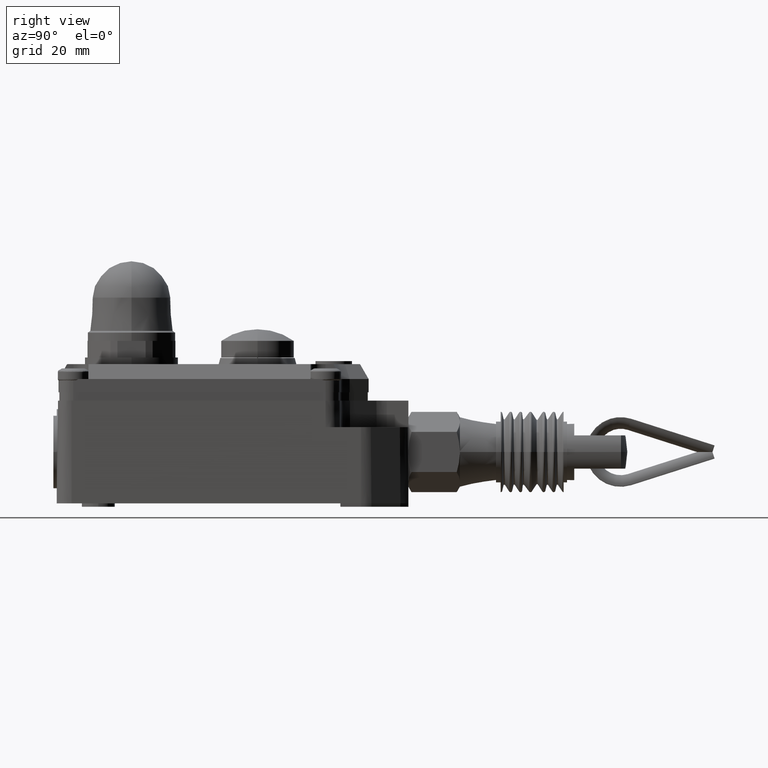
[diagram: clean part render]
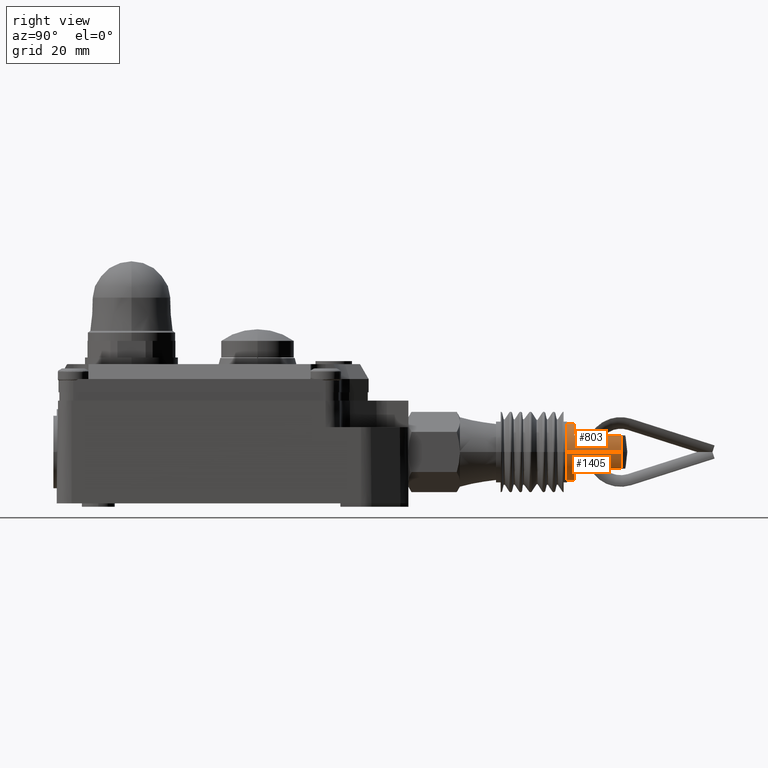
[diagram: same view with one multi-face feature highlighted, each face labeled with its STEP entity id]
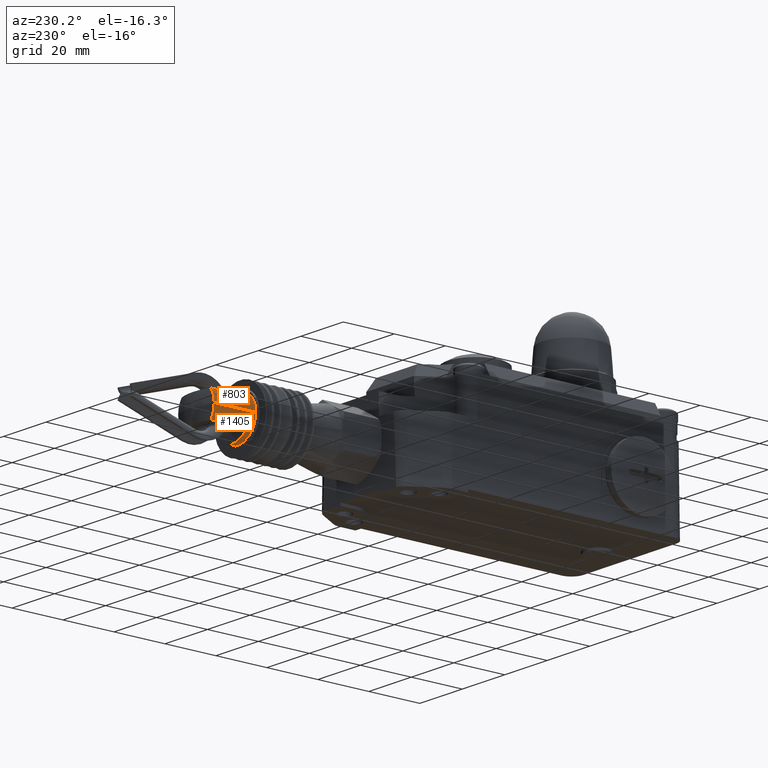
[diagram: same view with one multi-face feature highlighted, each face labeled with its STEP entity id]
A machine part, right view. The highlighted faces form ONE feature: a constant-radius fillet chain: 2 tangent blend faces with common blend radius 8.5 mm. The faces share edges in the B-rep.
A second angle (auxiliary view) of the same feature is appended — it is thin or edge-on in the first view.
Their STEP definitions:
[1] entity #803 (Cylinder):
#803=ADVANCED_FACE('',(#2081),#2082,.T.);
#2081=FACE_OUTER_BOUND('',#3891,.T.);
#2082=CYLINDRICAL_SURFACE('',#3892,8.5);
#3891=EDGE_LOOP('',(#6122,#6123,#6124,#6125,#6126,#6127,#6128,#6129));
#3892=AXIS2_PLACEMENT_3D('',#6130,#6131,#6132);
#6122=ORIENTED_EDGE('',*,*,#11009,.F.);
#6123=ORIENTED_EDGE('',*,*,#11010,.T.);
#6124=ORIENTED_EDGE('',*,*,#11011,.F.);
#6125=ORIENTED_EDGE('',*,*,#11012,.F.);
#6126=ORIENTED_EDGE('',*,*,#11013,.T.);
#6127=ORIENTED_EDGE('',*,*,#11014,.T.);
#6128=ORIENTED_EDGE('',*,*,#11015,.T.);
#6129=ORIENTED_EDGE('',*,*,#11016,.F.);
#6130=CARTESIAN_POINT('',(31.9104298117,152.2919334951,16.5));
#6131=DIRECTION('',(0.0,-1.0,0.0));
#6132=DIRECTION('',(-1.0,0.0,0.0));
#11009=EDGE_CURVE('',#13224,#13211,#13225,.T.);
#11010=EDGE_CURVE('',#13224,#13226,#13227,.T.);
#11011=EDGE_CURVE('',#13204,#13226,#13228,.T.);
#11012=EDGE_CURVE('',#13229,#13204,#13230,.T.);
#11013=EDGE_CURVE('',#13229,#13231,#13232,.T.);
#11014=EDGE_CURVE('',#13231,#13233,#13234,.T.);
#11015=EDGE_CURVE('',#13233,#13235,#13236,.T.);
#11016=EDGE_CURVE('',#13211,#13235,#13237,.T.);
#13204=VERTEX_POINT('',#16424);
#13211=VERTEX_POINT('',#16431);
#13224=VERTEX_POINT('',#16446);
#13225=LINE('',#16447,#16448);
#13226=VERTEX_POINT('',#16449);
#13227=CIRCLE('',#16450,8.5);
#13228=LINE('',#16451,#16452);
#13229=VERTEX_POINT('',#16453);
#13230=CIRCLE('',#16454,8.5);
#13231=VERTEX_POINT('',#16455);
#13232=LINE('',#16456,#16457);
#13233=VERTEX_POINT('',#16458);
#13234=CIRCLE('',#16459,8.5);
#13235=VERTEX_POINT('',#16460);
#13236=LINE('',#16461,#16462);
#13237=CIRCLE('',#16463,8.5);
#16424=CARTESIAN_POINT('',(40.4104298117,171.1438669902,16.5));
#16431=CARTESIAN_POINT('',(23.4104298117,171.1438669902,16.5));
#16446=CARTESIAN_POINT('',(23.4104298117,154.84,16.5));
#16447=CARTESIAN_POINT('',(23.4104298117,162.9919334951,16.5));
#16448=VECTOR('',#20667,1.0);
#16449=CARTESIAN_POINT('',(40.4104298117,154.84,16.5));
#16450=AXIS2_PLACEMENT_3D('',#20668,#20669,#20670);
#16451=CARTESIAN_POINT('',(40.4104298117,162.9919334951,16.5));
#16452=VECTOR('',#20671,1.0);
#16453=CARTESIAN_POINT('',(38.7842933541338,171.1438669902,21.5));
#16454=AXIS2_PLACEMENT_3D('',#20672,#20673,#20674);
#16455=CARTESIAN_POINT('',(38.7842933541338,157.04,21.5));
#16456=CARTESIAN_POINT('',(38.7842933541338,164.0919334951,21.5));
#16457=VECTOR('',#20675,1.0);
#16458=CARTESIAN_POINT('',(25.0365662692662,157.04,21.5));
#16459=AXIS2_PLACEMENT_3D('',#20676,#20677,#20678);
#16460=CARTESIAN_POINT('',(25.0365662692662,171.1438669902,21.5));
#16461=CARTESIAN_POINT('',(25.0365662692662,164.0919334951,21.5));
#16462=VECTOR('',#20679,1.0);
#16463=AXIS2_PLACEMENT_3D('',#20680,#20681,#20682);
#20667=DIRECTION('',(0.0,1.0,0.0));
#20668=CARTESIAN_POINT('',(31.9104298117,154.84,16.5));
#20669=DIRECTION('',(0.0,1.0,0.0));
#20670=DIRECTION('',(-1.0,0.0,0.0));
#20671=DIRECTION('',(0.0,-1.0,0.0));
#20672=CARTESIAN_POINT('',(31.9104298117,171.1438669902,16.5));
#20673=DIRECTION('',(0.0,1.0,0.0));
#20674=DIRECTION('',(-1.0,0.0,0.0));
#20675=DIRECTION('',(0.0,-1.0,0.0));
#20676=CARTESIAN_POINT('',(31.9104298117,157.04,16.5));
#20677=DIRECTION('',(0.0,-1.0,0.0));
#20678=DIRECTION('',(-1.0,0.0,0.0));
#20679=DIRECTION('',(0.0,1.0,0.0));
#20680=CARTESIAN_POINT('',(31.9104298117,171.1438669902,16.5));
#20681=DIRECTION('',(0.0,1.0,0.0));
#20682=DIRECTION('',(-1.0,0.0,0.0));
[2] entity #1405 (Cylinder):
#1405=ADVANCED_FACE('',(#3010),#3011,.T.);
#3010=FACE_OUTER_BOUND('',#4820,.T.);
#3011=CYLINDRICAL_SURFACE('',#4821,8.5);
#4820=EDGE_LOOP('',(#8812,#8813,#8814,#8815,#8816,#8817,#8818,#8819));
#4821=AXIS2_PLACEMENT_3D('',#8820,#8821,#8822);
#8812=ORIENTED_EDGE('',*,*,#11009,.T.);
#8813=ORIENTED_EDGE('',*,*,#11001,.F.);
#8814=ORIENTED_EDGE('',*,*,#12070,.T.);
#8815=ORIENTED_EDGE('',*,*,#12067,.T.);
#8816=ORIENTED_EDGE('',*,*,#12071,.T.);
#8817=ORIENTED_EDGE('',*,*,#10999,.F.);
#8818=ORIENTED_EDGE('',*,*,#11011,.T.);
#8819=ORIENTED_EDGE('',*,*,#12019,.T.);
#8820=CARTESIAN_POINT('',(31.9104298117,152.2919334951,16.5));
#8821=DIRECTION('',(0.0,-1.0,0.0));
#8822=DIRECTION('',(-1.0,0.0,0.0));
#10999=EDGE_CURVE('',#13204,#13207,#13208,.T.);
#11001=EDGE_CURVE('',#13209,#13211,#13212,.T.);
#11009=EDGE_CURVE('',#13224,#13211,#13225,.T.);
#11011=EDGE_CURVE('',#13204,#13226,#13228,.T.);
#12019=EDGE_CURVE('',#13226,#13224,#14711,.T.);
#12067=EDGE_CURVE('',#14759,#14760,#14761,.T.);
#12070=EDGE_CURVE('',#13209,#14759,#14764,.T.);
#12071=EDGE_CURVE('',#14760,#13207,#14765,.T.);
#13204=VERTEX_POINT('',#16424);
#13207=VERTEX_POINT('',#16427);
#13208=CIRCLE('',#16428,8.5);
#13209=VERTEX_POINT('',#16429);
#13211=VERTEX_POINT('',#16431);
#13212=CIRCLE('',#16432,8.5);
#13224=VERTEX_POINT('',#16446);
#13225=LINE('',#16447,#16448);
#13226=VERTEX_POINT('',#16449);
#13228=LINE('',#16451,#16452);
#14711=CIRCLE('',#18542,8.5);
#14759=VERTEX_POINT('',#18590);
#14760=VERTEX_POINT('',#18591);
#14761=CIRCLE('',#18592,8.5);
#14764=LINE('',#18596,#18597);
#14765=LINE('',#18598,#18599);
#16424=CARTESIAN_POINT('',(40.4104298117,171.1438669902,16.5));
#16427=CARTESIAN_POINT('',(38.7842933541338,171.1438669902,11.5));
#16428=AXIS2_PLACEMENT_3D('',#20647,#20648,#20649);
#16429=CARTESIAN_POINT('',(25.0365662692662,171.1438669902,11.5));
#16431=CARTESIAN_POINT('',(23.4104298117,171.1438669902,16.5));
#16432=AXIS2_PLACEMENT_3D('',#20653,#20654,#20655);
#16446=CARTESIAN_POINT('',(23.4104298117,154.84,16.5));
#16447=CARTESIAN_POINT('',(23.4104298117,162.9919334951,16.5));
#16448=VECTOR('',#20667,1.0);
#16449=CARTESIAN_POINT('',(40.4104298117,154.84,16.5));
#16451=CARTESIAN_POINT('',(40.4104298117,162.9919334951,16.5));
#16452=VECTOR('',#20671,1.0);
#18542=AXIS2_PLACEMENT_3D('',#22041,#22042,#22043);
#18590=CARTESIAN_POINT('',(25.0365662692662,157.04,11.5));
#18591=CARTESIAN_POINT('',(38.7842933541338,157.04,11.5));
#18592=AXIS2_PLACEMENT_3D('',#22086,#22087,#22088);
#18596=CARTESIAN_POINT('',(25.0365662692662,164.0919334951,11.5));
#18597=VECTOR('',#22090,1.0);
#18598=CARTESIAN_POINT('',(38.7842933541338,164.0919334951,11.5));
#18599=VECTOR('',#22091,1.0);
#20647=CARTESIAN_POINT('',(31.9104298117,171.1438669902,16.5));
#20648=DIRECTION('',(0.0,1.0,0.0));
#20649=DIRECTION('',(-1.0,0.0,0.0));
#20653=CARTESIAN_POINT('',(31.9104298117,171.1438669902,16.5));
#20654=DIRECTION('',(0.0,1.0,0.0));
#20655=DIRECTION('',(-1.0,0.0,0.0));
#20667=DIRECTION('',(0.0,1.0,0.0));
#20671=DIRECTION('',(0.0,-1.0,0.0));
#22041=CARTESIAN_POINT('',(31.9104298117,154.84,16.5));
#22042=DIRECTION('',(0.0,1.0,0.0));
#22043=DIRECTION('',(-1.0,0.0,0.0));
#22086=CARTESIAN_POINT('',(31.9104298117,157.04,16.5));
#22087=DIRECTION('',(0.0,-1.0,0.0));
#22088=DIRECTION('',(-1.0,0.0,0.0));
#22090=DIRECTION('',(0.0,-1.0,0.0));
#22091=DIRECTION('',(0.0,1.0,0.0));